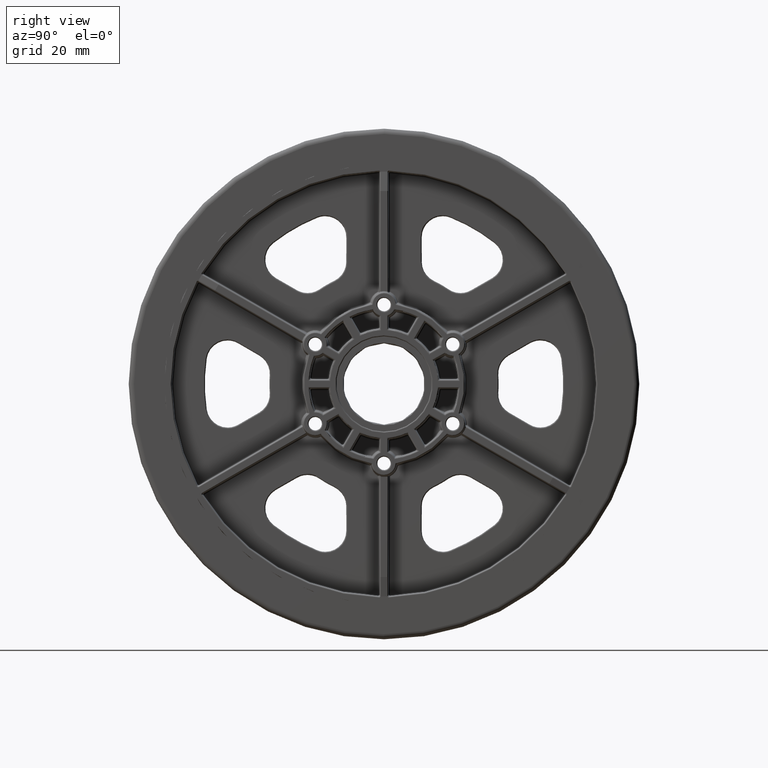
[diagram: clean part render]
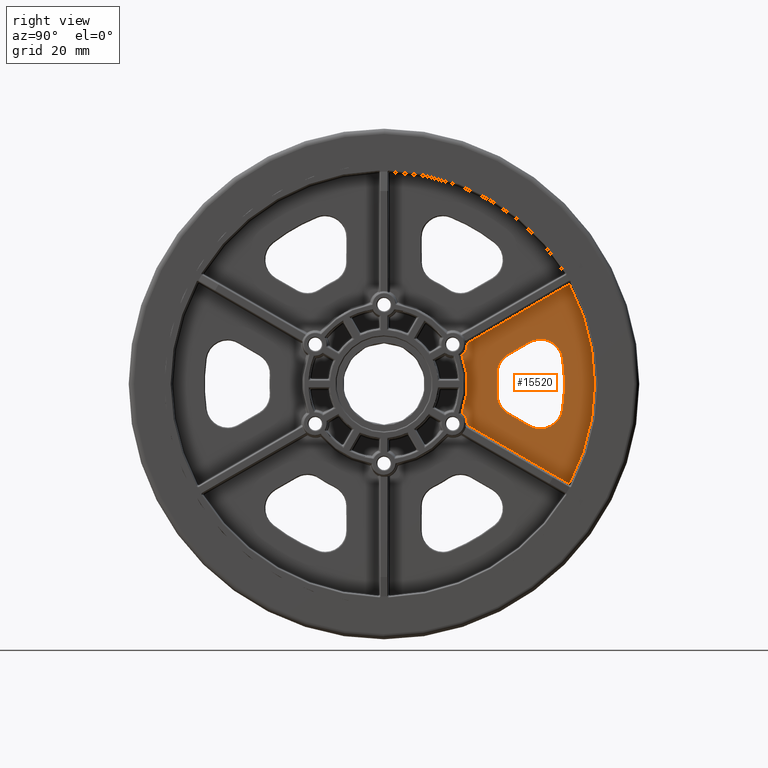
[diagram: same view with one face highlighted and labeled with its STEP entity id]
A machine part, right view. The second image highlights one B-rep face of the part: STEP entity #15520.
In plain terms, the highlighted planar face has unit normal (1, 0, 0).
Its self-contained STEP definition (entity closure, byte-faithful):
#22 = CARTESIAN_POINT ( 'NONE',  ( 0.05000000000000000971, 1.334374391963912387, -0.1002748470603822134 ) ) ;
#272 = CARTESIAN_POINT ( 'NONE',  ( 0.05000000000000000971, 0.0000000000000000000, 0.0000000000000000000 ) ) ;
#603 = VERTEX_POINT ( 'NONE', #50796 ) ;
#709 = VERTEX_POINT ( 'NONE', #41368 ) ;
#1216 = LINE ( 'NONE', #51393, #9431 ) ;
#1742 = EDGE_CURVE ( 'NONE', #3132, #42582, #7827, .T. ) ;
#1876 = AXIS2_PLACEMENT_3D ( 'NONE', #28184, #3832, #32244 ) ;
#2079 = CARTESIAN_POINT ( 'NONE',  ( 0.05000000000000000971, 2.109153736122141964, 0.3016341780601245470 ) ) ;
#2171 = EDGE_CURVE ( 'NONE', #13907, #603, #15466, .T. ) ;
#2290 = EDGE_LOOP ( 'NONE', ( #42683, #29708, #51775, #34514, #22802, #37026, #9694, #44163, #12925 ) ) ;
#2659 = AXIS2_PLACEMENT_3D ( 'NONE', #272, #28683, #4337 ) ;
#3132 = VERTEX_POINT ( 'NONE', #25782 ) ;
#3313 = CARTESIAN_POINT ( 'NONE',  ( 0.05000000000000000971, 1.465651509217781090, 0.3493531477505610328 ) ) ;
#3832 = DIRECTION ( 'NONE',  ( -1.000000000000000000, -0.0000000000000000000, -0.0000000000000000000 ) ) ;
#4337 = DIRECTION ( 'NONE',  ( 0.0000000000000000000, 3.552713678800500929E-15, -1.000000000000000000 ) ) ;
#4675 = VERTEX_POINT ( 'NONE', #46513 ) ;
#5415 = EDGE_CURVE ( 'NONE', #33107, #3132, #18484, .T. ) ;
#5457 = DIRECTION ( 'NONE',  ( -1.000000000000000000, -0.0000000000000000000, -0.0000000000000000000 ) ) ;
#5528 = EDGE_CURVE ( 'NONE', #709, #13907, #14662, .T. ) ;
#6036 = AXIS2_PLACEMENT_3D ( 'NONE', #29773, #5457, #33844 ) ;
#6377 = VECTOR ( 'NONE', #36701, 39.37007874015748854 ) ;
#7827 = CIRCLE ( 'NONE', #6036, 0.2649999999999999578 ) ;
#7876 = ORIENTED_EDGE ( 'NONE', *, *, #36892, .T. ) ;
#7941 = DIRECTION ( 'NONE',  ( -1.000000000000000000, -0.0000000000000000000, -0.0000000000000000000 ) ) ;
#8287 = CARTESIAN_POINT ( 'NONE',  ( 0.05000000000000000971, 1.713845017800695869, 0.4933379372856608325 ) ) ;
#9030 = EDGE_CURVE ( 'NONE', #39390, #33107, #50505, .T. ) ;
#9236 = CIRCLE ( 'NONE', #28278, 0.2650000000000001799 ) ;
#9431 = VECTOR ( 'NONE', #14948, 39.37007874015748854 ) ;
#9513 = CARTESIAN_POINT ( 'NONE',  ( 0.05000000000000000971, 0.9825134359681844121, -0.4800808658220450664 ) ) ;
#9694 = ORIENTED_EDGE ( 'NONE', *, *, #9030, .T. ) ;
#11012 = EDGE_CURVE ( 'NONE', #42582, #49997, #48484, .T. ) ;
#11538 = CIRCLE ( 'NONE', #20457, 0.2650000000000000688 ) ;
#11996 = CARTESIAN_POINT ( 'NONE',  ( 0.05000000000000000971, 0.0000000000000000000, 0.0000000000000000000 ) ) ;
#12244 = CARTESIAN_POINT ( 'NONE',  ( 0.05000000000000000971, 0.0000000000000000000, 0.0000000000000000000 ) ) ;
#12763 = CARTESIAN_POINT ( 'NONE',  ( 0.05000000000000000971, 1.846822808634352553, -0.2641177218922390879 ) ) ;
#12925 = ORIENTED_EDGE ( 'NONE', *, *, #1742, .T. ) ;
#13907 = VERTEX_POINT ( 'NONE', #39570 ) ;
#14082 = EDGE_CURVE ( 'NONE', #27525, #36920, #47639, .T. ) ;
#14459 = CARTESIAN_POINT ( 'NONE',  ( 0.05000000000000000971, 0.8118988160479059246, 0.4687500000000096034 ) ) ;
#14556 = ORIENTED_EDGE ( 'NONE', *, *, #5528, .T. ) ;
#14611 = DIRECTION ( 'NONE',  ( -1.000000000000000000, -0.0000000000000000000, -0.0000000000000000000 ) ) ;
#14662 = CIRCLE ( 'NONE', #45219, 2.486132294299675749 ) ;
#14780 = DIRECTION ( 'NONE',  ( 1.000000000000000000, 0.0000000000000000000, 0.0000000000000000000 ) ) ;
#14948 = DIRECTION ( 'NONE',  ( -0.0000000000000000000, 0.8649819448807888334, -0.5018029842779412331 ) ) ;
#15466 = LINE ( 'NONE', #47642, #35782 ) ;
#15470 = CARTESIAN_POINT ( 'NONE',  ( 0.05000000000000000971, 0.0000000000000000000, 0.0000000000000000000 ) ) ;
#15520 = ADVANCED_FACE ( 'NONE', ( #35539, #48791 ), #16372, .T. ) ;
#16372 = PLANE ( 'NONE',  #34143 ) ;
#16738 = DIRECTION ( 'NONE',  ( 0.0000000000000000000, -0.8649819448807897215, 0.5018029842779399008 ) ) ;
#16880 = DIRECTION ( 'NONE',  ( 0.0000000000000000000, 0.0000000000000000000, -1.000000000000000000 ) ) ;
#17251 = DIRECTION ( 'NONE',  ( 1.000000000000000000, 0.0000000000000000000, 0.0000000000000000000 ) ) ;
#17398 = VERTEX_POINT ( 'NONE', #22 ) ;
#18021 = CIRCLE ( 'NONE', #34300, 1.338136787806853523 ) ;
#18484 = LINE ( 'NONE', #8287, #6377 ) ;
#18546 = DIRECTION ( 'NONE',  ( 0.0000000000000000000, -3.195322137260595736E-15, -1.000000000000000000 ) ) ;
#19024 = EDGE_CURVE ( 'NONE', #28567, #17398, #9236, .T. ) ;
#19253 = CIRCLE ( 'NONE', #31879, 0.1709904589467353686 ) ;
#19558 = DIRECTION ( 'NONE',  ( 0.0000000000000000000, 0.0000000000000000000, -1.000000000000000000 ) ) ;
#20457 = AXIS2_PLACEMENT_3D ( 'NONE', #32290, #7941, #36370 ) ;
#20479 = DIRECTION ( 'NONE',  ( 0.0000000000000000000, 0.0000000000000000000, -1.000000000000000000 ) ) ;
#20515 = ORIENTED_EDGE ( 'NONE', *, *, #47516, .T. ) ;
#20846 = CARTESIAN_POINT ( 'NONE',  ( 0.05000000000000000971, 1.465651509217783977, -0.3493531477505519844 ) ) ;
#21657 = CARTESIAN_POINT ( 'NONE',  ( 0.05000000000000000971, 2.109153736122142853, -0.3016341780601092259 ) ) ;
#21818 = LINE ( 'NONE', #20846, #31279 ) ;
#21988 = CARTESIAN_POINT ( 'NONE',  ( 0.05000000000000000971, 1.598629300051437996, -0.1201329323571426327 ) ) ;
#22802 = ORIENTED_EDGE ( 'NONE', *, *, #19024, .T. ) ;
#25065 = AXIS2_PLACEMENT_3D ( 'NONE', #15470, #43806, #19558 ) ;
#25321 = CARTESIAN_POINT ( 'NONE',  ( 0.05000000000000000971, 1.465651509217783754, -0.3493531477505518179 ) ) ;
#25419 = EDGE_CURVE ( 'NONE', #36920, #28567, #21818, .T. ) ;
#25749 = EDGE_CURVE ( 'NONE', #49997, #27525, #11538, .T. ) ;
#25782 = CARTESIAN_POINT ( 'NONE',  ( 0.05000000000000000971, 1.713845017800695869, 0.4933379372856608325 ) ) ;
#26071 = DIRECTION ( 'NONE',  ( 0.0000000000000000000, 0.0000000000000000000, -1.000000000000000000 ) ) ;
#26520 = ORIENTED_EDGE ( 'NONE', *, *, #27560, .T. ) ;
#26647 = AXIS2_PLACEMENT_3D ( 'NONE', #12763, #41147, #16880 ) ;
#26735 = CIRCLE ( 'NONE', #45961, 0.1709904589467354241 ) ;
#27525 = VERTEX_POINT ( 'NONE', #42596 ) ;
#27560 = EDGE_CURVE ( 'NONE', #4675, #32344, #26735, .T. ) ;
#28184 = CARTESIAN_POINT ( 'NONE',  ( 0.05000000000000000971, 1.598629300051437108, 0.1201329323571530133 ) ) ;
#28278 = AXIS2_PLACEMENT_3D ( 'NONE', #21988, #50256, #26071 ) ;
#28567 = VERTEX_POINT ( 'NONE', #25321 ) ;
#28683 = DIRECTION ( 'NONE',  ( -1.000000000000000000, -0.0000000000000000000, -0.0000000000000000000 ) ) ;
#29708 = ORIENTED_EDGE ( 'NONE', *, *, #25749, .T. ) ;
#29773 = CARTESIAN_POINT ( 'NONE',  ( 0.05000000000000000971, 1.846822808634351443, 0.2641177218922525216 ) ) ;
#31279 = VECTOR ( 'NONE', #16738, 39.37007874015748143 ) ;
#31869 = EDGE_CURVE ( 'NONE', #17398, #39390, #18021, .T. ) ;
#31879 = AXIS2_PLACEMENT_3D ( 'NONE', #14459, #42809, #18546 ) ;
#32244 = DIRECTION ( 'NONE',  ( 0.0000000000000000000, 1.030886035345005159E-15, -1.000000000000000000 ) ) ;
#32290 = CARTESIAN_POINT ( 'NONE',  ( 0.05000000000000000971, 1.846822808634352553, -0.2641177218922390879 ) ) ;
#32344 = VERTEX_POINT ( 'NONE', #9513 ) ;
#33107 = VERTEX_POINT ( 'NONE', #3313 ) ;
#33624 = ORIENTED_EDGE ( 'NONE', *, *, #48425, .T. ) ;
#33844 = DIRECTION ( 'NONE',  ( 0.0000000000000000000, 0.0000000000000000000, -1.000000000000000000 ) ) ;
#33951 = CARTESIAN_POINT ( 'NONE',  ( 0.05000000000000000971, 1.334374391963911721, 0.1002748470603909564 ) ) ;
#34143 = AXIS2_PLACEMENT_3D ( 'NONE', #12244, #36589, #20479 ) ;
#34300 = AXIS2_PLACEMENT_3D ( 'NONE', #41518, #17251, #45597 ) ;
#34514 = ORIENTED_EDGE ( 'NONE', *, *, #25419, .T. ) ;
#35539 = FACE_BOUND ( 'NONE', #2290, .T. ) ;
#35782 = VECTOR ( 'NONE', #43574, 39.37007874015748143 ) ;
#36370 = DIRECTION ( 'NONE',  ( 0.0000000000000000000, -1.030886035345004765E-15, -1.000000000000000000 ) ) ;
#36589 = DIRECTION ( 'NONE',  ( 1.000000000000000000, 0.0000000000000000000, 0.0000000000000000000 ) ) ;
#36701 = DIRECTION ( 'NONE',  ( -0.0000000000000000000, 0.8649819448807850586, 0.5018029842779478944 ) ) ;
#36763 = CARTESIAN_POINT ( 'NONE',  ( 0.05000000000000000971, 1.713845017800698312, -0.4933379372856483425 ) ) ;
#36892 = EDGE_CURVE ( 'NONE', #32344, #709, #1216, .T. ) ;
#36920 = VERTEX_POINT ( 'NONE', #36763 ) ;
#37026 = ORIENTED_EDGE ( 'NONE', *, *, #31869, .T. ) ;
#37703 = CIRCLE ( 'NONE', #25065, 0.9826177057003245841 ) ;
#38716 = VERTEX_POINT ( 'NONE', #41981 ) ;
#38868 = CARTESIAN_POINT ( 'NONE',  ( 0.05000000000000000971, 0.8118988160479155836, -0.4687499999999925060 ) ) ;
#39324 = ORIENTED_EDGE ( 'NONE', *, *, #2171, .T. ) ;
#39390 = VERTEX_POINT ( 'NONE', #33951 ) ;
#39570 = CARTESIAN_POINT ( 'NONE',  ( 0.05000000000000000971, 2.188430884421539879, 1.179671161328328832 ) ) ;
#41147 = DIRECTION ( 'NONE',  ( -1.000000000000000000, -0.0000000000000000000, -0.0000000000000000000 ) ) ;
#41368 = CARTESIAN_POINT ( 'NONE',  ( 0.05000000000000000971, 2.188430884421547873, -1.179671161328313733 ) ) ;
#41518 = CARTESIAN_POINT ( 'NONE',  ( 0.05000000000000000971, 0.0000000000000000000, 0.0000000000000000000 ) ) ;
#41981 = CARTESIAN_POINT ( 'NONE',  ( 0.05000000000000000971, 0.9225219346239206253, 0.3383649445399141142 ) ) ;
#42582 = VERTEX_POINT ( 'NONE', #2079 ) ;
#42596 = CARTESIAN_POINT ( 'NONE',  ( 0.05000000000000003053, 1.846822808634352553, -0.5291177218922391567 ) ) ;
#42683 = ORIENTED_EDGE ( 'NONE', *, *, #11012, .T. ) ;
#42809 = DIRECTION ( 'NONE',  ( -1.000000000000000000, -0.0000000000000000000, -0.0000000000000000000 ) ) ;
#42954 = DIRECTION ( 'NONE',  ( 0.0000000000000000000, -1.597661068630297474E-15, -1.000000000000000000 ) ) ;
#43125 = DIRECTION ( 'NONE',  ( 0.0000000000000000000, 0.0000000000000000000, -1.000000000000000000 ) ) ;
#43574 = DIRECTION ( 'NONE',  ( 0.0000000000000000000, -0.8649819448807853917, -0.5018029842779473393 ) ) ;
#43806 = DIRECTION ( 'NONE',  ( -1.000000000000000000, -0.0000000000000000000, -0.0000000000000000000 ) ) ;
#44163 = ORIENTED_EDGE ( 'NONE', *, *, #5415, .T. ) ;
#45219 = AXIS2_PLACEMENT_3D ( 'NONE', #11996, #14780, #43125 ) ;
#45597 = DIRECTION ( 'NONE',  ( 0.0000000000000000000, 0.0000000000000000000, -1.000000000000000000 ) ) ;
#45961 = AXIS2_PLACEMENT_3D ( 'NONE', #38868, #14611, #42954 ) ;
#46403 = EDGE_LOOP ( 'NONE', ( #7876, #14556, #39324, #33624, #20515, #26520 ) ) ;
#46513 = CARTESIAN_POINT ( 'NONE',  ( 0.05000000000000000971, 0.9225219346239321716, -0.3383649445398965172 ) ) ;
#47516 = EDGE_CURVE ( 'NONE', #38716, #4675, #37703, .T. ) ;
#47639 = CIRCLE ( 'NONE', #26647, 0.2650000000000000688 ) ;
#47642 = CARTESIAN_POINT ( 'NONE',  ( 0.05000000000000000971, 0.03902365910746410926, -0.06726695856484256331 ) ) ;
#48425 = EDGE_CURVE ( 'NONE', #603, #38716, #19253, .T. ) ;
#48484 = CIRCLE ( 'NONE', #2659, 2.130613212193145145 ) ;
#48791 = FACE_OUTER_BOUND ( 'NONE', #46403, .T. ) ;
#49997 = VERTEX_POINT ( 'NONE', #21657 ) ;
#50256 = DIRECTION ( 'NONE',  ( -1.000000000000000000, -0.0000000000000000000, -0.0000000000000000000 ) ) ;
#50505 = CIRCLE ( 'NONE', #1876, 0.2649999999999999578 ) ;
#50796 = CARTESIAN_POINT ( 'NONE',  ( 0.05000000000000000971, 0.9825134359681757523, 0.4800808658220485636 ) ) ;
#51393 = CARTESIAN_POINT ( 'NONE',  ( 0.05000000000000000971, 2.201546408932391952, -1.187279885855875072 ) ) ;
#51775 = ORIENTED_EDGE ( 'NONE', *, *, #14082, .T. ) ;